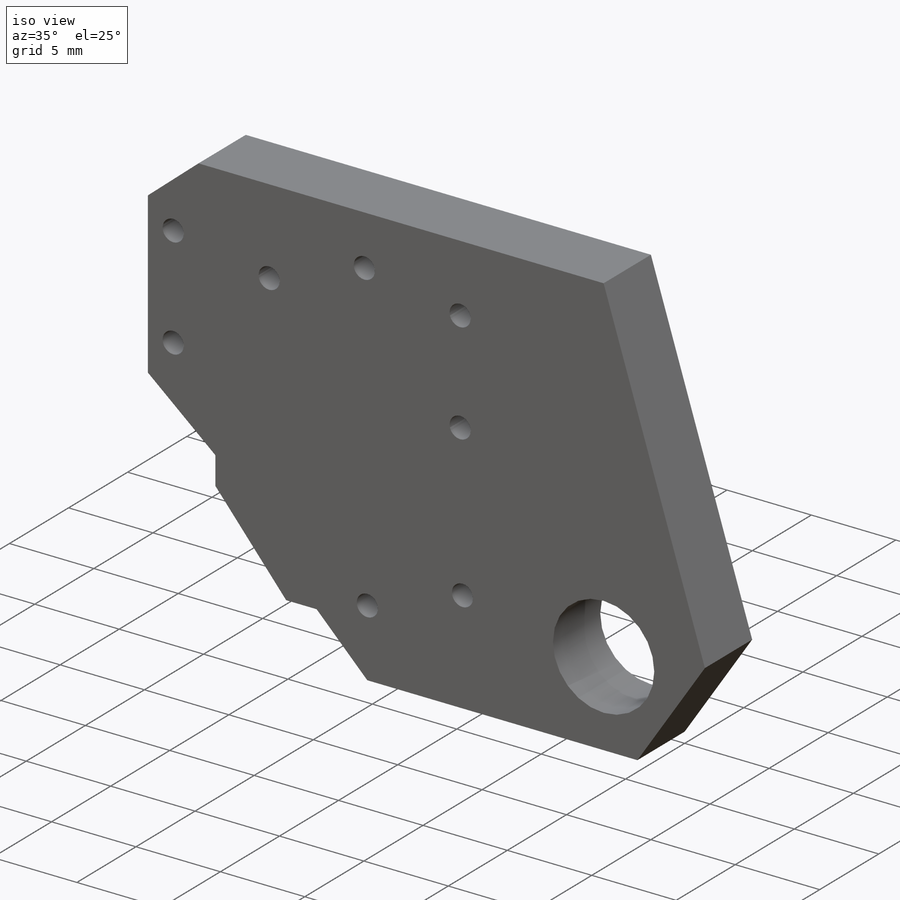
[diagram: iso view]
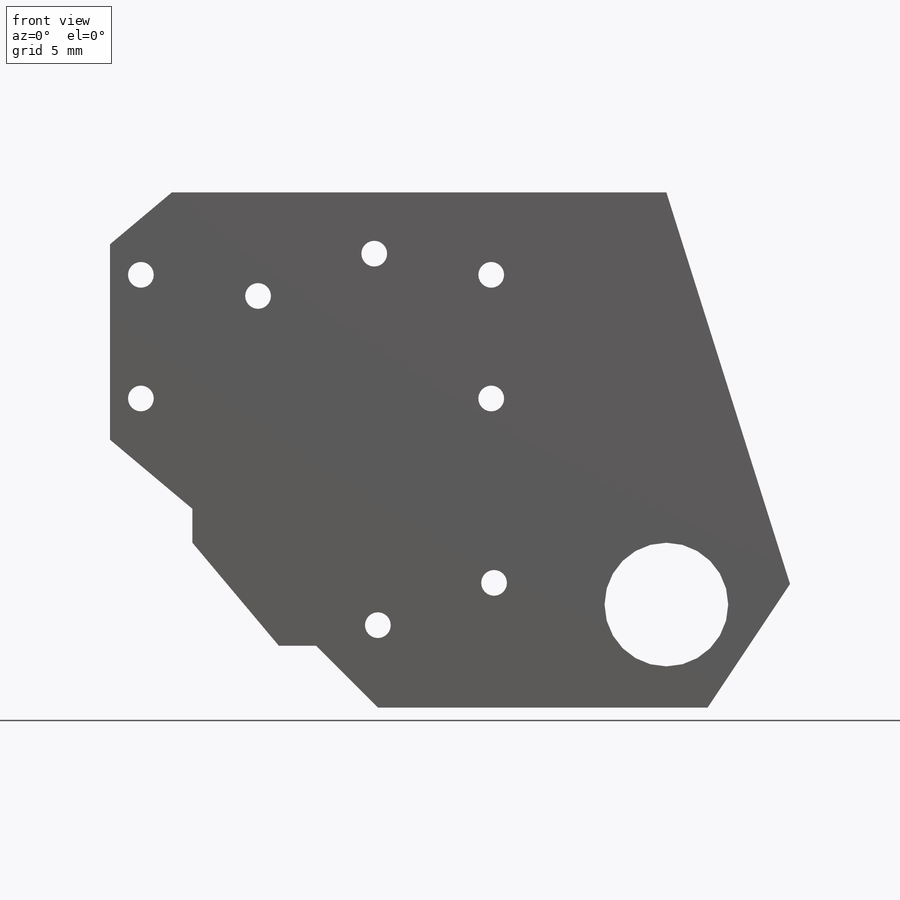
[diagram: front view]
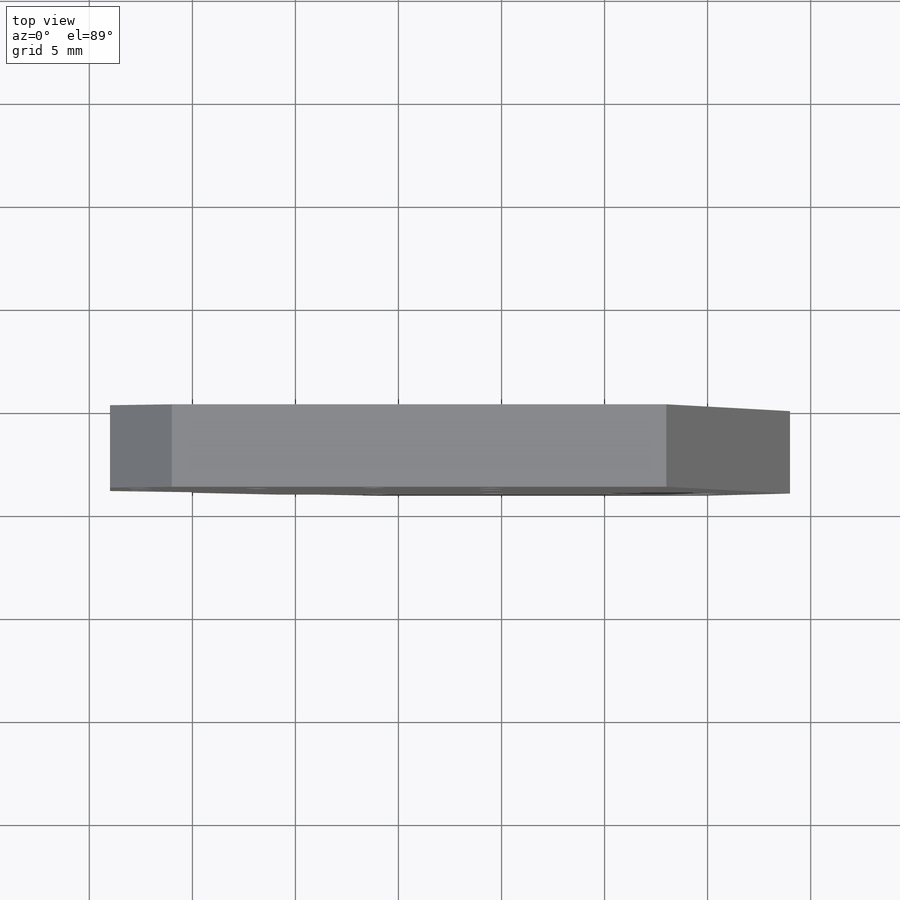
[diagram: top view]
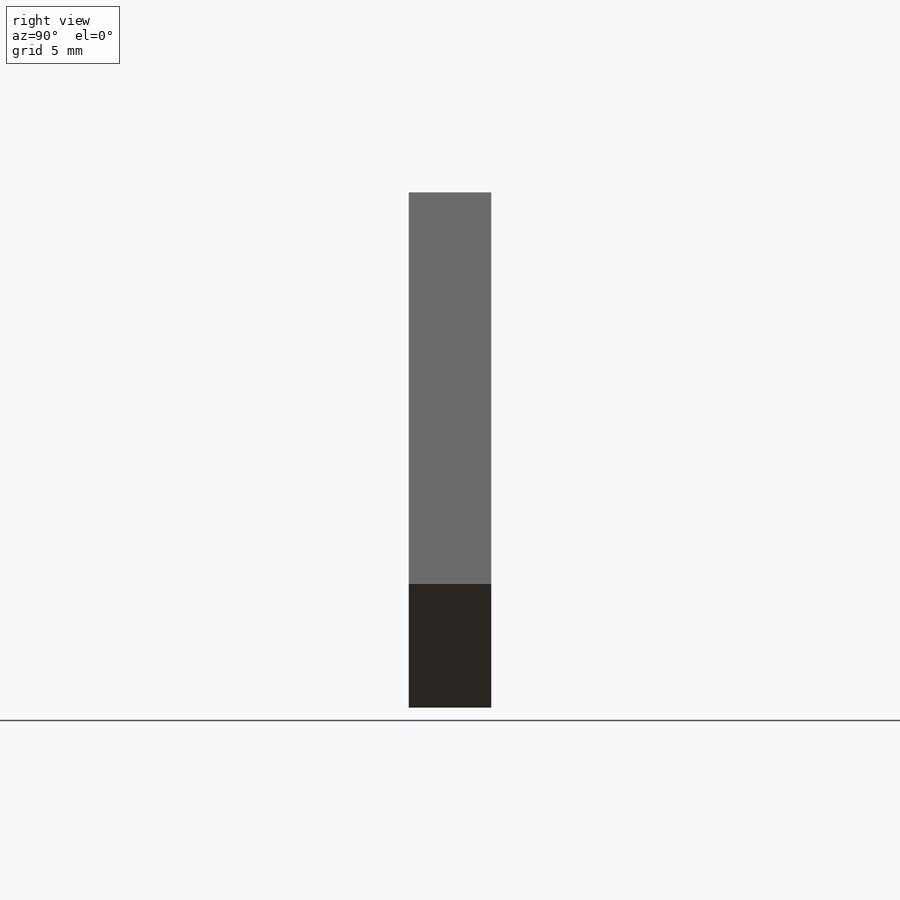
[diagram: right view]
SOLIDWORKS PART (.sldprt)
format: sldprt  version: not decoded by parser v0  size: 325,120 bytes
history: native  units: mm
features: thread x8, sketch x5, plane x3, chamfer x3, hole x2, material x1, extrude x1 (+8 scaffold rows collapsed)
feature tree (31):
  scaffold x8  (default folders/planes/origin — collapsed)
  material  "6061 合金"
  plane  "前视基准面"
  plane  "上视基准面"
  plane  "右视基准面"
  sketch  "草图1"  dims[c1.D6=6.0mm c1.D1=27.0mm c1.D2=6.0mm c1.D3=25.0mm c1.D4=23.0mm c1.D5=4.0mm c1.D7=6.0mm c1.D8=5.0mm c1.D9=4.0mm c1.D10=2.0mm c1.D11=12.0mm c1.D12=3.0mm c1.D13=3.0mm c2.D4=27.0mm c2.D10=25.0mm c2.D7=6.0mm c2.D14=6.0mm]
  extrude  "凸台-拉伸1"  Depth=4mm
  hole  "M1.6 螺纹孔1"  [1 undecoded]
  sketch  "草图3"  dims[c1.D1=6.0mm c1.D2=17.0mm c1.D3=2.0mm c1.D4=4.0mm c2.D3=1.5mm]
  sketch  "草图2"  dims[hole-wizard template sketch: 46 standard entries collapsed; hole parameters kept: c15.螺纹孔钻头直径=1.25mm c15.螺纹孔钻头深度=4.95mm c15.D3=~14.816244mm c15.导头角度=118.0deg]
  thread  "孔螺蚊线1"  Diameter=3mm  [1 undecoded]
  thread  "孔螺蚊线2"  Diameter=3mm  [1 undecoded]
  thread  "孔螺蚊线4"  Diameter=3mm  [1 undecoded]
  thread  "孔螺蚊线5"  Diameter=3mm  [1 undecoded]
  hole  "M1.6 螺纹孔2"  [1 undecoded]
  sketch  "草图5"  dims[c1.D1=17.0mm c1.D2=6.0mm c1.D3=~17.85416mm c2.D3=70.0deg c2.D4=4.0mm c2.D5=9.0mm]
  sketch  "草图4"  dims[hole-wizard template sketch: 46 standard entries collapsed; hole parameters kept: c15.螺纹孔钻头直径=1.25mm c15.螺纹孔钻头深度=4.95mm c15.D3=~14.816244mm c15.导头角度=118.0deg]
  thread  "孔螺蚊线6"  Diameter=3mm  [1 undecoded]
  thread  "孔螺蚊线7"  Diameter=3mm  [1 undecoded]
  thread  "孔螺蚊线8"  Diameter=3mm  [1 undecoded]
  thread  "孔螺蚊线9"  Diameter=3mm  [1 undecoded]
  chamfer  "倒角1"  Distance=5mm Angle=40deg
  chamfer  "倒角2"  Distance=4mm Angle=40deg
  chamfer  "倒角4"  Distance=3mm Angle=40deg
decode coverage: 17 of 19 modeling features carry decoded parameters
note: ~ marks probable driven/reference dimensions
note: 10 parameter values undecoded
note: suppression state not decoded; provenance and decode notes live in map.json
